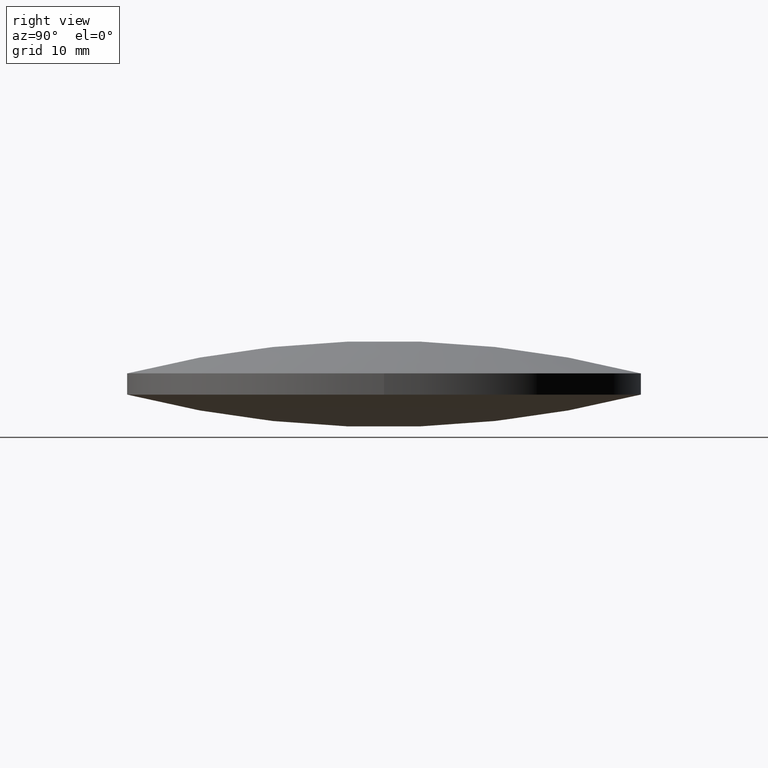
[diagram: clean part render]
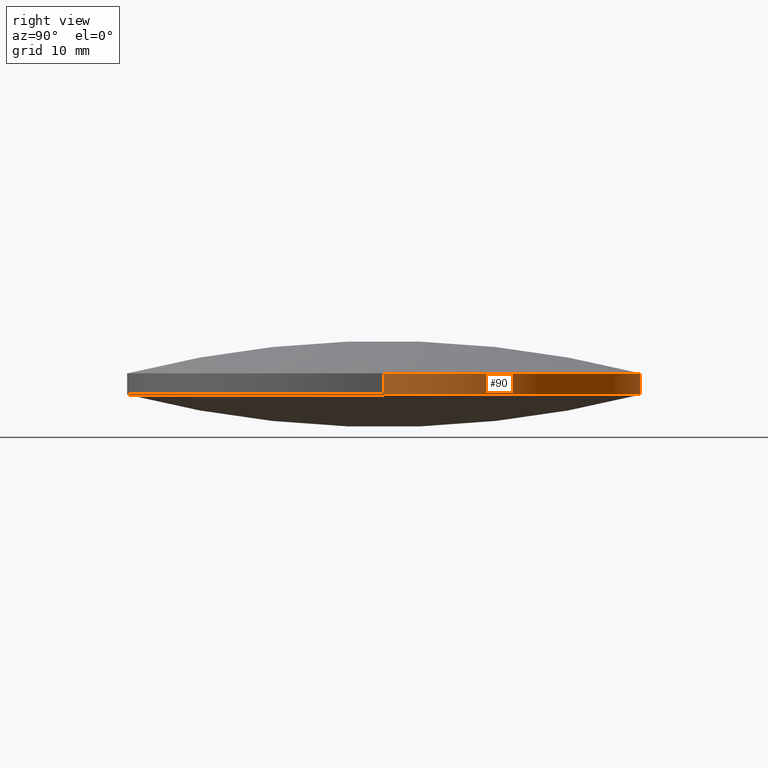
[diagram: same view with one face highlighted and labeled with its STEP entity id]
A machine part, right view. The second image highlights one B-rep face of the part: STEP entity #90.
In plain terms, the highlighted cylindrical surface (partial cylindrical patch) has radius 25.4 mm, axis along (0, 0, 1).
Its self-contained STEP definition (entity closure, byte-faithful):
#1 = DIRECTION ( 'NONE',  ( 1.000000000000000000, 0.0000000000000000000, 0.0000000000000000000 ) ) ;
#2 = VECTOR ( 'NONE', #277, 1000.000000000000000 ) ;
#4 = DIRECTION ( 'NONE',  ( -0.0000000000000000000, -0.0000000000000000000, -1.000000000000000000 ) ) ;
#5 = CARTESIAN_POINT ( 'NONE',  ( 9.992007221626412800E-016, 4.884981308350691100E-015, 3.203430937292290000 ) ) ;
#6 = ORIENTED_EDGE ( 'NONE', *, *, #190, .T. ) ;
#17 = EDGE_LOOP ( 'NONE', ( #169, #182, #51, #6, #268, #200 ) ) ;
#18 = EDGE_CURVE ( 'NONE', #149, #100, #58, .T. ) ;
#28 = CARTESIAN_POINT ( 'NONE',  ( 25.39999999999999900, 4.884981308350691100E-015, 3.203430937292290000 ) ) ;
#29 = LINE ( 'NONE', #259, #2 ) ;
#44 = DIRECTION ( 'NONE',  ( 1.000000000000000000, 0.0000000000000000000, 0.0000000000000000000 ) ) ;
#51 = ORIENTED_EDGE ( 'NONE', *, *, #71, .T. ) ;
#55 = VERTEX_POINT ( 'NONE', #231 ) ;
#56 = EDGE_CURVE ( 'NONE', #100, #191, #118, .T. ) ;
#58 = CIRCLE ( 'NONE', #181, 25.39999999999999900 ) ;
#61 = CIRCLE ( 'NONE', #273, 25.39999999999999900 ) ;
#71 = EDGE_CURVE ( 'NONE', #116, #55, #248, .T. ) ;
#86 = CARTESIAN_POINT ( 'NONE',  ( 9.992007221626412800E-016, 4.884981308350691100E-015, 3.203430937292290000 ) ) ;
#88 = CARTESIAN_POINT ( 'NONE',  ( 9.992007221626412800E-016, 4.884981308350691100E-015, 3.203430937292290000 ) ) ;
#90 = ADVANCED_FACE ( 'NONE', ( #249 ), #267, .T. ) ;
#93 = LINE ( 'NONE', #104, #219 ) ;
#100 = VERTEX_POINT ( 'NONE', #115 ) ;
#104 = CARTESIAN_POINT ( 'NONE',  ( -25.39999999999999900, 7.995584178184967200E-015, 3.203430937292290000 ) ) ;
#115 = CARTESIAN_POINT ( 'NONE',  ( -2.131628207280299900E-014, 25.40000000000003100, 3.203430937292291300 ) ) ;
#116 = VERTEX_POINT ( 'NONE', #232 ) ;
#118 = CIRCLE ( 'NONE', #245, 25.39999999999999900 ) ;
#125 = DIRECTION ( 'NONE',  ( 1.000000000000000000, 8.881784197001252300E-016, 0.0000000000000000000 ) ) ;
#128 = EDGE_CURVE ( 'NONE', #191, #274, #29, .T. ) ;
#140 = DIRECTION ( 'NONE',  ( 1.000000000000000000, 0.0000000000000000000, 0.0000000000000000000 ) ) ;
#149 = VERTEX_POINT ( 'NONE', #211 ) ;
#151 = DIRECTION ( 'NONE',  ( -0.0000000000000000000, -0.0000000000000000000, -1.000000000000000000 ) ) ;
#159 = DIRECTION ( 'NONE',  ( 1.000000000000000000, 0.0000000000000000000, 0.0000000000000000000 ) ) ;
#166 = AXIS2_PLACEMENT_3D ( 'NONE', #252, #4, #44 ) ;
#169 = ORIENTED_EDGE ( 'NONE', *, *, #18, .F. ) ;
#173 = DIRECTION ( 'NONE',  ( 0.0000000000000000000, 0.0000000000000000000, 1.000000000000000000 ) ) ;
#181 = AXIS2_PLACEMENT_3D ( 'NONE', #86, #253, #1 ) ;
#182 = ORIENTED_EDGE ( 'NONE', *, *, #201, .T. ) ;
#190 = EDGE_CURVE ( 'NONE', #55, #274, #61, .T. ) ;
#191 = VERTEX_POINT ( 'NONE', #28 ) ;
#200 = ORIENTED_EDGE ( 'NONE', *, *, #56, .F. ) ;
#201 = EDGE_CURVE ( 'NONE', #149, #116, #93, .T. ) ;
#211 = CARTESIAN_POINT ( 'NONE',  ( -25.39999999999999900, 7.995584178184967200E-015, 3.203430937292290000 ) ) ;
#219 = VECTOR ( 'NONE', #173, 1000.000000000000000 ) ;
#229 = DIRECTION ( 'NONE',  ( 0.0000000000000000000, 0.0000000000000000000, 1.000000000000000000 ) ) ;
#231 = CARTESIAN_POINT ( 'NONE',  ( 2.131628207280299900E-014, 25.40000000000002700, 5.296569062707712700 ) ) ;
#232 = CARTESIAN_POINT ( 'NONE',  ( -25.39999999999999900, 7.995584178184967200E-015, 5.296569062707710000 ) ) ;
#245 = AXIS2_PLACEMENT_3D ( 'NONE', #88, #272, #140 ) ;
#248 = CIRCLE ( 'NONE', #166, 25.39999999999999900 ) ;
#249 = FACE_OUTER_BOUND ( 'NONE', #17, .T. ) ;
#252 = CARTESIAN_POINT ( 'NONE',  ( 9.992007221626412800E-016, 4.884981308350691100E-015, 5.296569062707710000 ) ) ;
#253 = DIRECTION ( 'NONE',  ( -0.0000000000000000000, -0.0000000000000000000, -1.000000000000000000 ) ) ;
#259 = CARTESIAN_POINT ( 'NONE',  ( 25.39999999999999900, 4.884981308350691100E-015, 3.203430937292290000 ) ) ;
#265 = CARTESIAN_POINT ( 'NONE',  ( 9.992007221626412800E-016, 4.884981308350691100E-015, 5.296569062707710000 ) ) ;
#267 = CYLINDRICAL_SURFACE ( 'NONE', #271, 25.39999999999999900 ) ;
#268 = ORIENTED_EDGE ( 'NONE', *, *, #128, .F. ) ;
#271 = AXIS2_PLACEMENT_3D ( 'NONE', #5, #229, #159 ) ;
#272 = DIRECTION ( 'NONE',  ( -0.0000000000000000000, -0.0000000000000000000, -1.000000000000000000 ) ) ;
#273 = AXIS2_PLACEMENT_3D ( 'NONE', #265, #151, #125 ) ;
#274 = VERTEX_POINT ( 'NONE', #289 ) ;
#277 = DIRECTION ( 'NONE',  ( 0.0000000000000000000, 0.0000000000000000000, 1.000000000000000000 ) ) ;
#289 = CARTESIAN_POINT ( 'NONE',  ( 25.39999999999999900, 4.884981308350691100E-015, 5.296569062707710000 ) ) ;